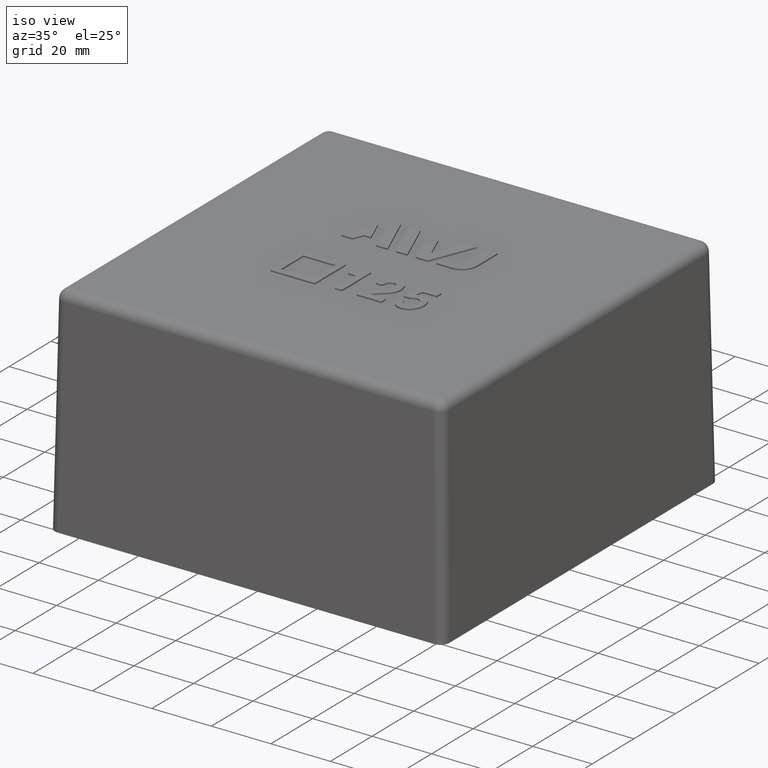
[diagram: clean part render]
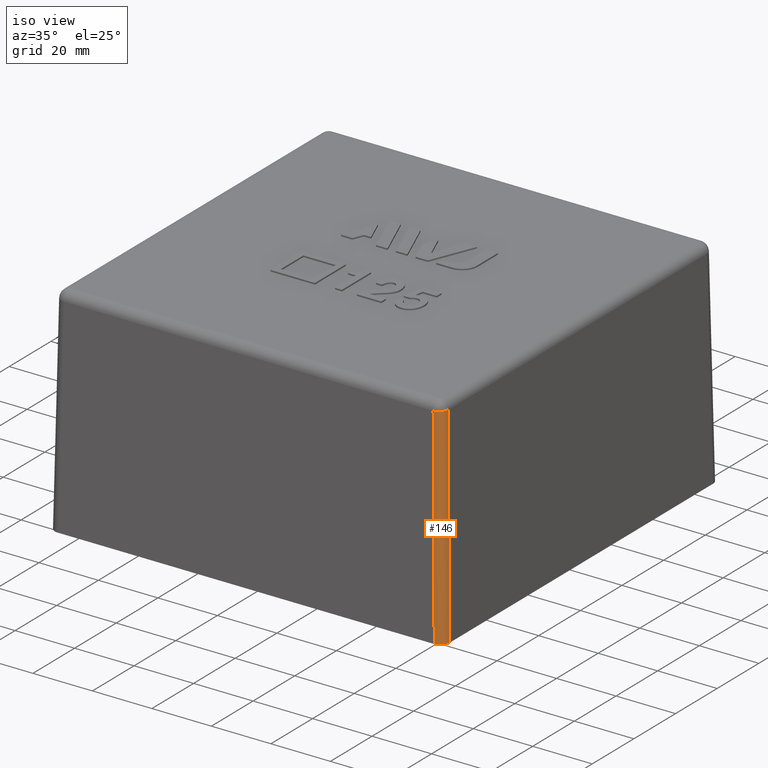
[diagram: same view with one face highlighted and labeled with its STEP entity id]
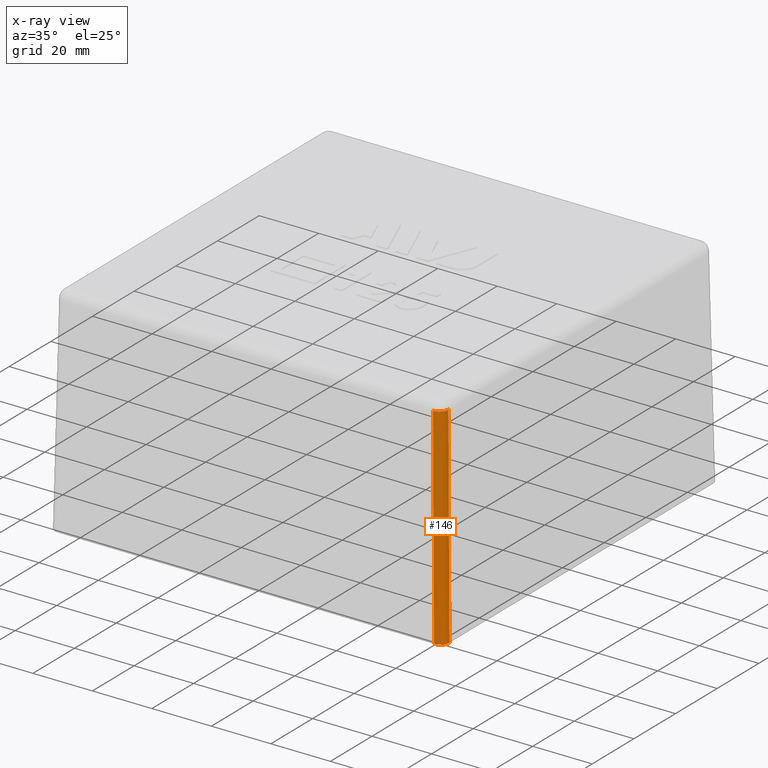
[diagram: x-ray of the same camera — body ghosted, the highlighted face saturated]
A machine part, iso view. The second image highlights one B-rep face of the part: STEP entity #146.
The next image is the same camera in x-ray: the body ghosted, the highlighted face saturated — about 0% of this face is hidden behind the body in this view.
In plain terms, the highlighted cylindrical surface (edge-blend (fillet) strip) has radius 3 mm, axis along (-0.0174, 0.0174, 0.9997).
Its self-contained STEP definition (entity closure, byte-faithful):
#146 = ADVANCED_FACE( '', ( #320 ), #321, .T. );
#320 = FACE_OUTER_BOUND( '', #519, .T. );
#321 = CYLINDRICAL_SURFACE( '', #520, 3.00000000000000 );
#519 = EDGE_LOOP( '', ( #1155, #1156, #1157, #1158 ) );
#520 = AXIS2_PLACEMENT_3D( '', #1159, #1160, #1161 );
#1155 = ORIENTED_EDGE( '', *, *, #1527, .F. );
#1156 = ORIENTED_EDGE( '', *, *, #1520, .T. );
#1157 = ORIENTED_EDGE( '', *, *, #1528, .F. );
#1158 = ORIENTED_EDGE( '', *, *, #1529, .F. );
#1159 = CARTESIAN_POINT( '', ( 63.3013702566405, -63.3013702566405, -0.104682553732048 ) );
#1160 = DIRECTION( '', ( -0.0174497491606827, 0.0174497491606827, 0.999695459881888 ) );
#1161 = DIRECTION( '', ( -0.999847695156391, 0.000000000000000, -0.0174524064372835 ) );
#1520 = EDGE_CURVE( '', #1863, #1868, #1870, .T. );
#1527 = EDGE_CURVE( '', #1863, #1879, #1880, .F. );
#1528 = EDGE_CURVE( '', #1881, #1868, #1882, .T. );
#1529 = EDGE_CURVE( '', #1879, #1881, #1883, .F. );
#1863 = VERTEX_POINT( '', #2532 );
#1868 = VERTEX_POINT( '', #2538 );
#1870 = CIRCLE( '', #2540, 3.00000000000000 );
#1879 = VERTEX_POINT( '', #2551 );
#1880 = LINE( '', #2552, #2553 );
#1881 = VERTEX_POINT( '', #2554 );
#1882 = LINE( '', #2555, #2556 );
#1883 = ELLIPSE( '', #2557, 3.00091389867315, 3.00000000000000 );
#2532 = CARTESIAN_POINT( '', ( 65.0772315563622, -62.0776884708930, 70.0523572193118 ) );
#2538 = CARTESIAN_POINT( '', ( 62.0776884708930, -65.0772315563622, 70.0523572193119 ) );
#2540 = AXIS2_PLACEMENT_3D( '', #2807, #2808, #2809 );
#2551 = CARTESIAN_POINT( '', ( 66.3000000000000, -63.3004569145308, 0.000000000000000 ) );
#2552 = CARTESIAN_POINT( '', ( 66.3009133421097, -63.3013702566405, -0.0523253344201979 ) );
#2553 = VECTOR( '', #2824, 1000.00000000000 );
#2554 = CARTESIAN_POINT( '', ( 63.3004569145308, -66.3000000000000, 0.000000000000000 ) );
#2555 = CARTESIAN_POINT( '', ( 63.2609943859513, -66.2605374714205, 2.26080674817263 ) );
#2556 = VECTOR( '', #2825, 1000.00000000000 );
#2557 = AXIS2_PLACEMENT_3D( '', #2826, #2827, #2828 );
#2807 = CARTESIAN_POINT( '', ( 62.0776884708930, -62.0776884708930, 70.0000000000000 ) );
#2808 = DIRECTION( '', ( 0.0174497491606827, -0.0174497491606827, -0.999695459881888 ) );
#2809 = DIRECTION( '', ( -0.999847695156391, 0.000000000000000, -0.0174524064372835 ) );
#2824 = DIRECTION( '', ( -0.0174497491606827, 0.0174497491606827, 0.999695459881887 ) );
#2825 = DIRECTION( '', ( -0.0174497491606827, 0.0174497491606827, 0.999695459881887 ) );
#2826 = CARTESIAN_POINT( '', ( 63.2995430158683, -63.2995430158683, 0.000000000000000 ) );
#2827 = DIRECTION( '', ( 0.000000000000000, 0.000000000000000, 1.00000000000000 ) );
#2828 = DIRECTION( '', ( 0.707106781186548, -0.707106781186548, 0.000000000000000 ) );